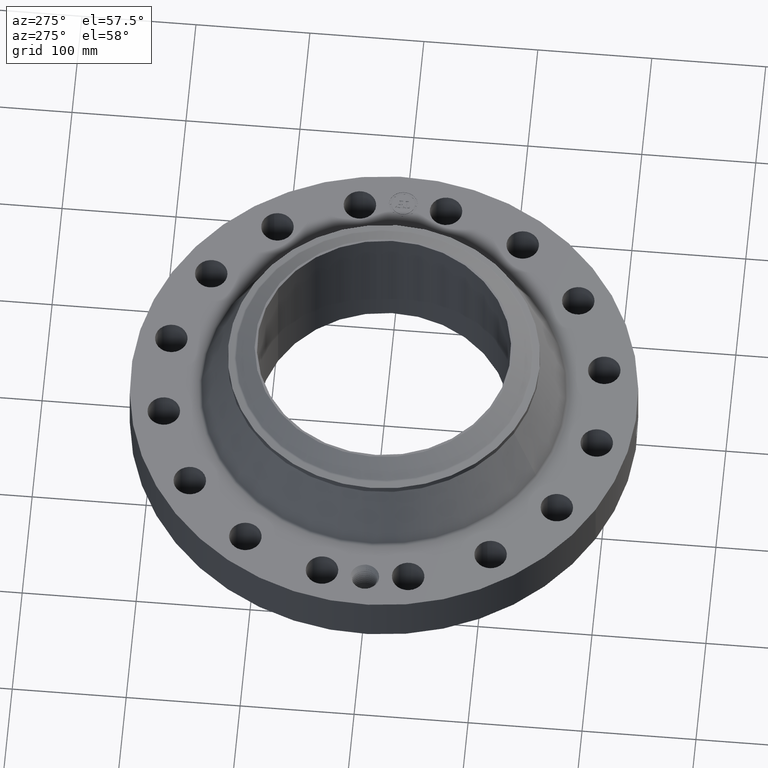
[diagram: clean part render]
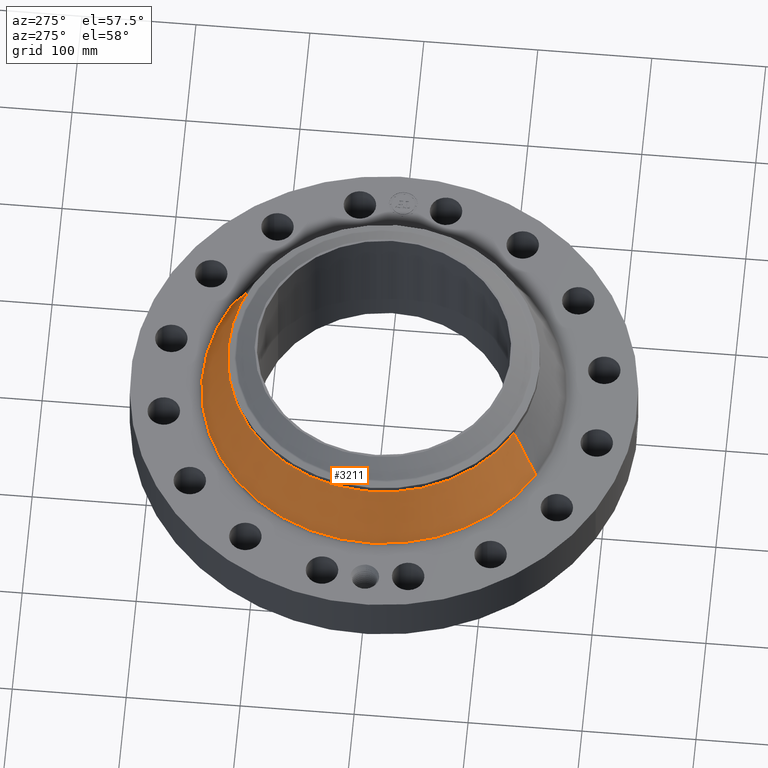
[diagram: same view with one face highlighted and labeled with its STEP entity id]
A machine part, auxiliary view. The second image highlights one B-rep face of the part: STEP entity #3211.
In plain terms, the highlighted conical surface has half-angle 25.665 deg.
Its self-contained STEP definition (entity closure, byte-faithful):
#2435=AXIS2_PLACEMENT_3D('Circle Axis2P3D',#2433,#2434,$) ;
#3172=AXIS2_PLACEMENT_3D('Cone Axis2P3D',#3169,#3170,#3171) ;
#3202=AXIS2_PLACEMENT_3D('Circle Axis2P3D',#3200,#3201,$) ;
#2411=CARTESIAN_POINT('Vertex',(3.00950355542,5.50885930664,2.00802605857)) ;
#2418=CARTESIAN_POINT('Vertex',(-3.00950355542,-5.50885930664,2.00802605857)) ;
#2433=CARTESIAN_POINT('Axis2P3D Location',(0.,0.,2.00802605857)) ;
#3169=CARTESIAN_POINT('Axis2P3D Location',(0.,0.,3.88578537513)) ;
#3174=CARTESIAN_POINT('Line Origine',(2.79320791271,5.11293278841,2.94690571685)) ;
#3178=CARTESIAN_POINT('Vertex',(2.57691227001,4.71700627018,3.88578537513)) ;
#3185=CARTESIAN_POINT('Vertex',(-2.57691227001,-4.71700627018,3.88578537513)) ;
#3188=CARTESIAN_POINT('Line Origine',(-2.79320791271,-5.11293278841,2.94690571685)) ;
#3200=CARTESIAN_POINT('Axis2P3D Location',(0.,0.,3.88578537513)) ;
#2434=DIRECTION('Axis2P3D Direction',(0.,0.,-0.0393700787402)) ;
#3170=DIRECTION('Axis2P3D Direction',(0.,0.,-0.0393700787402)) ;
#3171=DIRECTION('Axis2P3D XDirection',(-0.0188750212049,-0.0345504945626,0.)) ;
#3175=DIRECTION('Vector Direction',(0.00817507705696,0.0149643781768,-0.0354857520831)) ;
#3189=DIRECTION('Vector Direction',(-0.00817507705696,-0.0149643781768,-0.0354857520831)) ;
#3201=DIRECTION('Axis2P3D Direction',(0.,0.,-0.0393700787402)) ;
#3176=VECTOR('Line Direction',#3175,0.0393700787402) ;
#3190=VECTOR('Line Direction',#3189,0.0393700787402) ;
#3206=ORIENTED_EDGE('',*,*,#2437,.F.) ;
#3207=ORIENTED_EDGE('',*,*,#3192,.T.) ;
#3208=ORIENTED_EDGE('',*,*,#3204,.T.) ;
#3209=ORIENTED_EDGE('',*,*,#3180,.F.) ;
#3211=ADVANCED_FACE('PartBody',(#3210),#3173,.T.) ;
#2436=CIRCLE('generated circle',#2435,6.2773117264) ;
#3203=CIRCLE('generated circle',#3202,5.37500000002) ;
#3173=CONICAL_SURFACE('Cone',#3172,5.37500000002,0.447947197295) ;
#2437=EDGE_CURVE('',#2419,#2412,#2436,.T.) ;
#3180=EDGE_CURVE('',#2412,#3179,#3177,.F.) ;
#3192=EDGE_CURVE('',#2419,#3186,#3191,.F.) ;
#3204=EDGE_CURVE('',#3186,#3179,#3203,.T.) ;
#3205=EDGE_LOOP('',(#3206,#3207,#3208,#3209)) ;
#3210=FACE_OUTER_BOUND('',#3205,.T.) ;
#3177=LINE('Line',#3174,#3176) ;
#3191=LINE('Line',#3188,#3190) ;
#2412=VERTEX_POINT('',#2411) ;
#2419=VERTEX_POINT('',#2418) ;
#3179=VERTEX_POINT('',#3178) ;
#3186=VERTEX_POINT('',#3185) ;